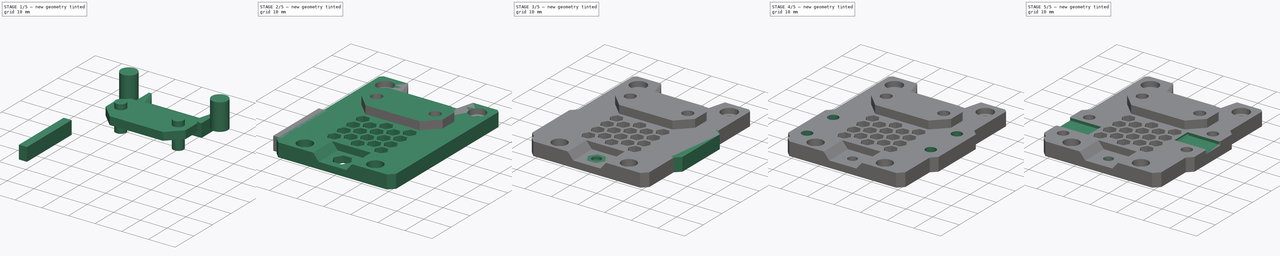
[diagram: build sequence overview — one tinted view per stage of 5, left to right]
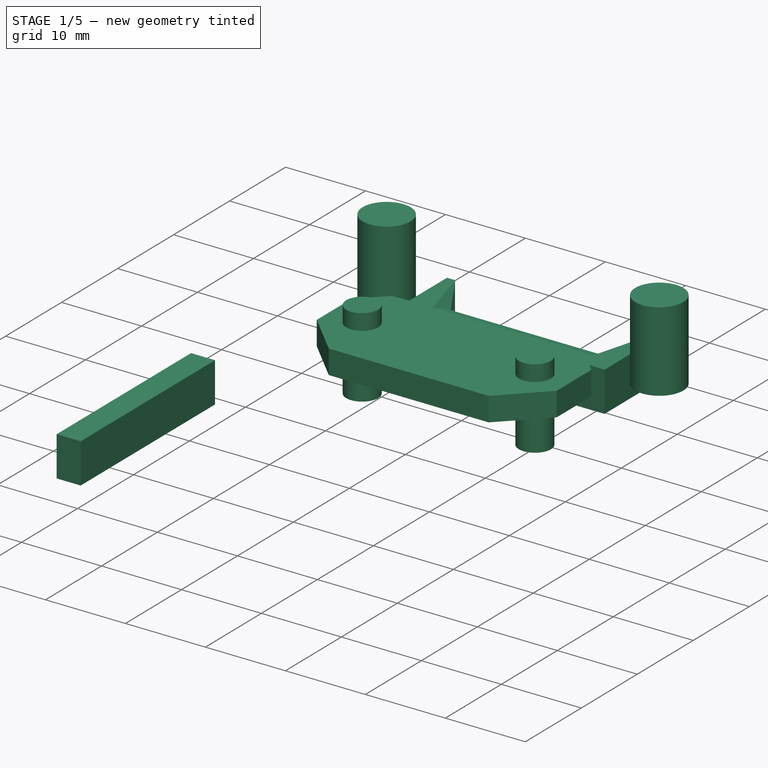
[diagram: stage 1 of 5 — iso view after this stage's code; geometry added in this stage tinted green]
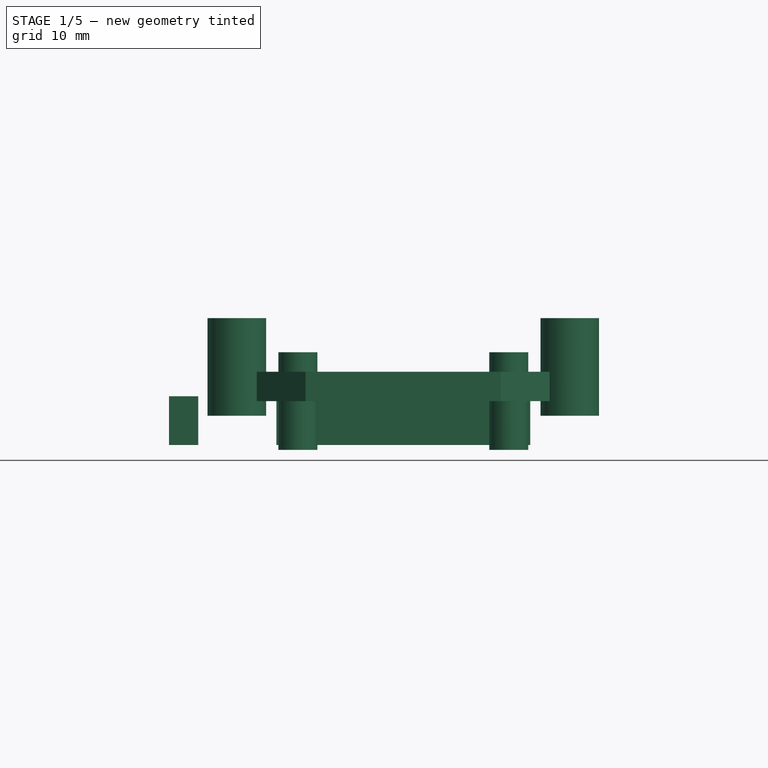
[diagram: stage 1 of 5 — front view after this stage's code; geometry added in this stage tinted green]
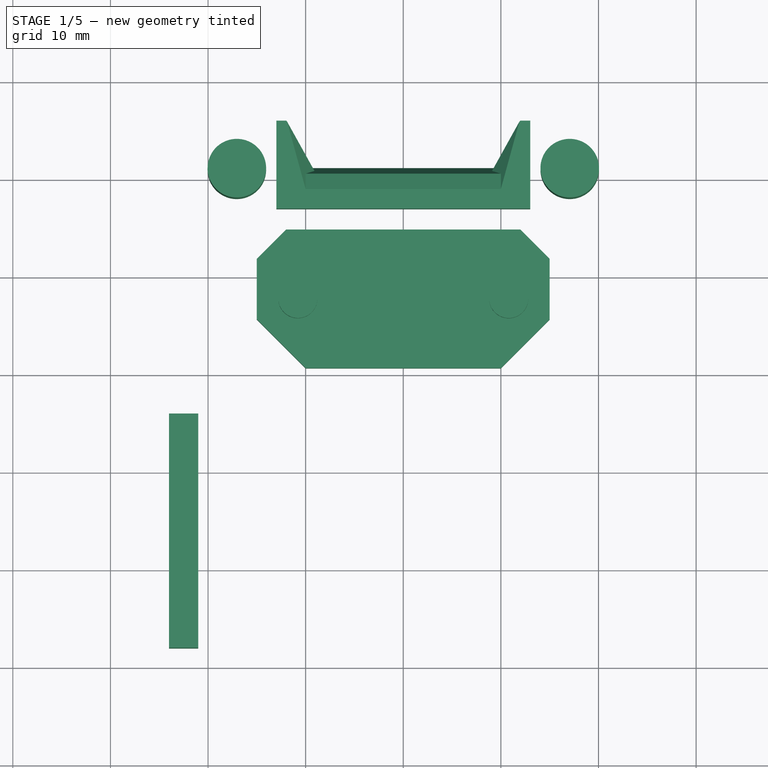
[diagram: stage 1 of 5 — top view after this stage's code; geometry added in this stage tinted green]
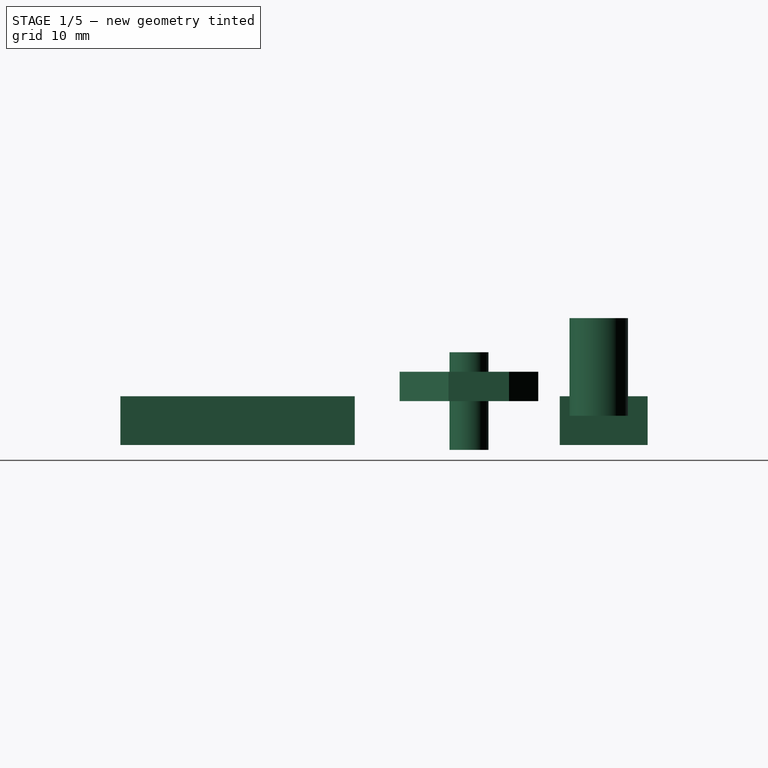
[diagram: stage 1 of 5 — right view after this stage's code; geometry added in this stage tinted green]
FCSTD DOCUMENT  (FreeCAD 0.19R24291 (Git))
Label: front-plate
License: Other
LicenseURL: GPL3
objects: Part::Cylinder×10, Part::MultiFuse×10, Part::Cut×9, Part::Box×7, Part::Feature×7, Part::Chamfer×4, Part::Extrusion×1, Part::MultiCommon×1, PartDesign::FeatureBase×1, Sketcher::SketchObject×1, PartDesign::Pad×1, PartDesign::Chamfer×1, PartDesign::Body×1
note: 56 computed .brp shape members not serialized (recipe doc carries the construction recipe); baked Part::Feature solids carry a one-line shape summary decoded from their .brp

FEATURE [Part::Cylinder] Cylinder023
  Angle = 360
  AttacherType = Attacher::AttachEngine3D
  Height = 10
  Placement = pos=(10.8,17.705,0) rot=(0,0,1;0rad)
  Radius = 2
FEATURE [Part::Box] Box030  label="Cube026"
  AttacherType = Attacher::AttachEngine3D
  Height = 10
  Length = 26
  Placement = pos=(-13,27,0) rot=(0,0,1;0rad)
  Width = 10
FEATURE [Part::Cylinder] Cylinder028
  Angle = 360
  AttacherType = Attacher::AttachEngine3D
  Height = 10
  Placement = pos=(-10.8,17.71,0) rot=(0,0,1;1.5708rad)
  Radius = 2
FEATURE [Part::Feature] Part__Feature077  label="universal_face003"
  Placement = pos=(-0.00422634,7.50353,0.50127) rot=(-1,0,0;1.5708rad)
  shape: bbox 44.11 x 57.01 x 8.01 mm, 258 faces (baked)
FEATURE [Part::Feature] Part__Feature074_cs002
  shape: bbox 30 x 14.2 x 3e-07 mm, 0 faces, 0 solids (baked)
FEATURE [Part::Extrusion] Extrude003002002
  Base = -> Part__Feature074_cs002
  Dir = (0,0,1)
  DirMode = 2
  FaceMakerClass = Part::FaceMakerBullseye
  LengthFwd = 3
  LengthRev = 0
  Placement = pos=(0,0,-1) rot=(0,0,1;0rad)
  Solid = true
  Symmetric = false
FEATURE [Part::Cylinder] Cylinder029
  Angle = 360
  AttacherType = Attacher::AttachEngine3D
  Height = 10
  Placement = pos=(17.05,31,3.5) rot=(0,0,1;1.5708rad)
  Radius = 3
FEATURE [Part::Box] Box035  label="Cube031"
  AttacherType = Attacher::AttachEngine3D
  Height = 5
  Length = 3
  Placement = pos=(-24,-18,0.5) rot=(0,0,1;0rad)
  Width = 24
FEATURE [Part::MultiCommon] Common001
  Placement = pos=(0,0,-0.00126953) rot=(0,0,1;0rad)
  Shapes = -> [Part__Feature077,Box030]
FEATURE [Part::Cylinder] Cylinder032
  Angle = 360
  AttacherType = Attacher::AttachEngine3D
  Height = 10
  Placement = pos=(-17.05,31,3.5) rot=(0,0,1;1.5708rad)
  Radius = 3
FEATURE [Part::MultiFuse] Fusion001007011044
  Shapes = -> [Cylinder032,Cylinder029]
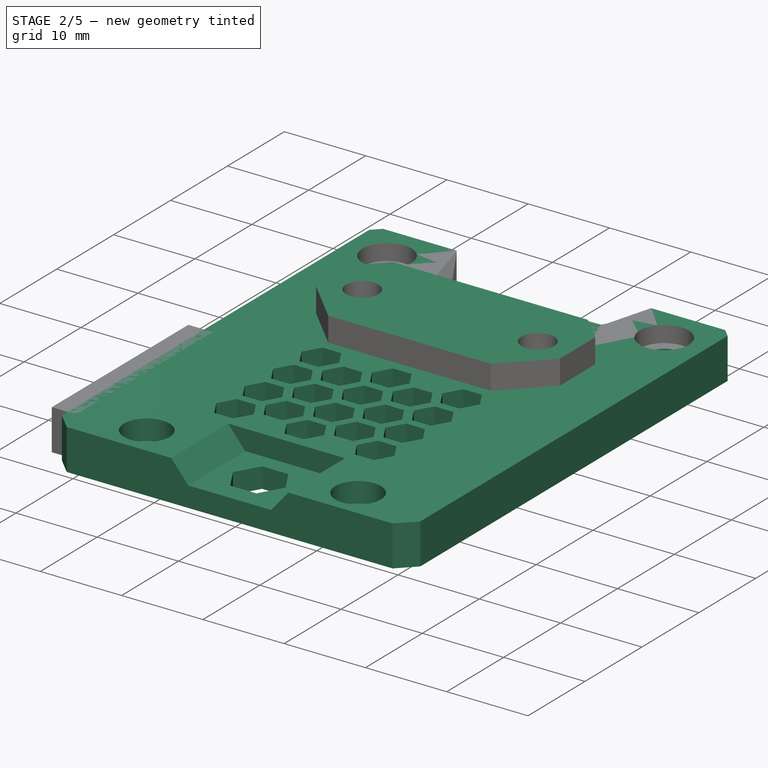
[diagram: stage 2 of 5 — iso view after this stage's code; geometry added in this stage tinted green]
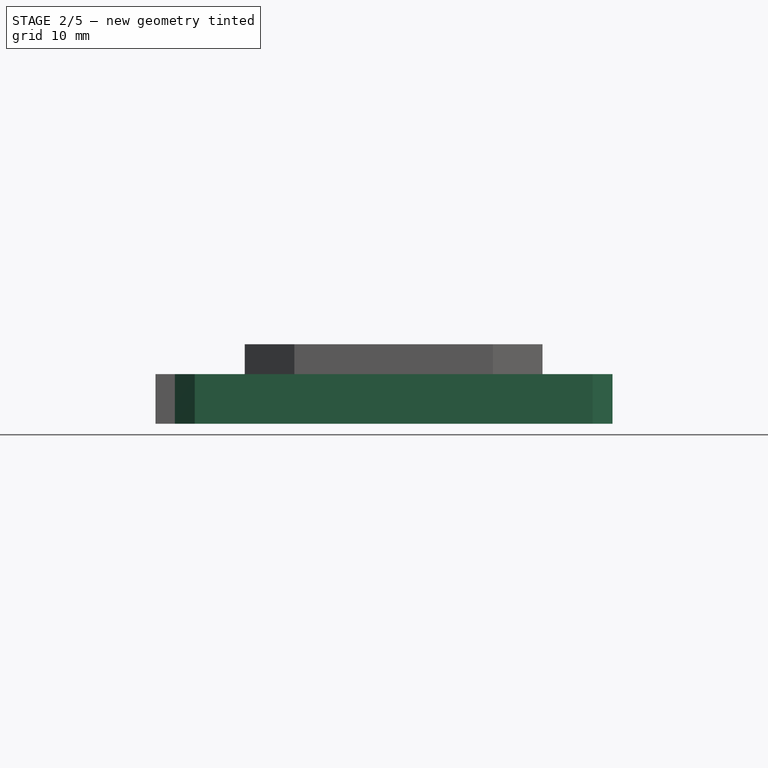
[diagram: stage 2 of 5 — front view after this stage's code; geometry added in this stage tinted green]
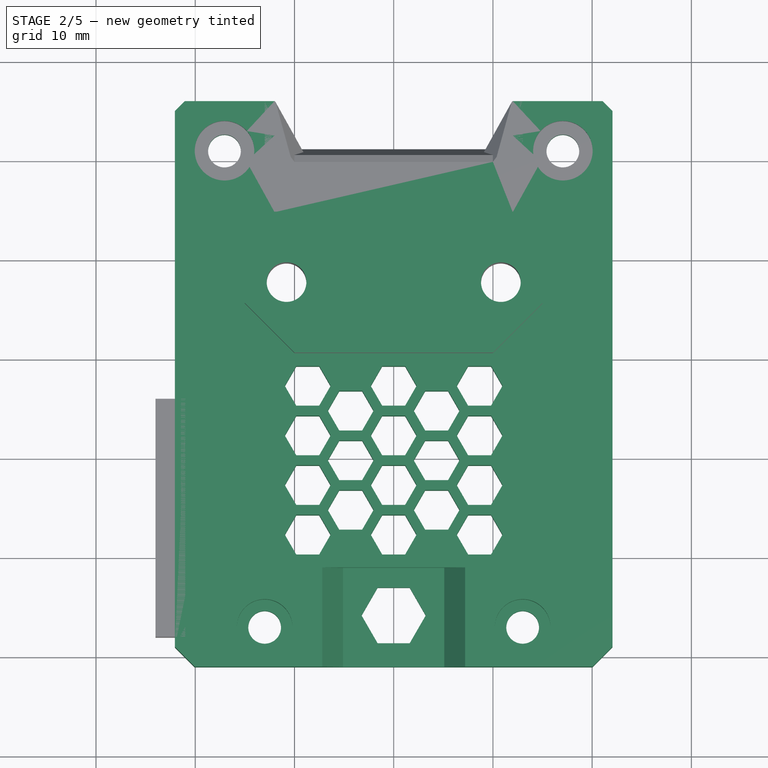
[diagram: stage 2 of 5 — top view after this stage's code; geometry added in this stage tinted green]
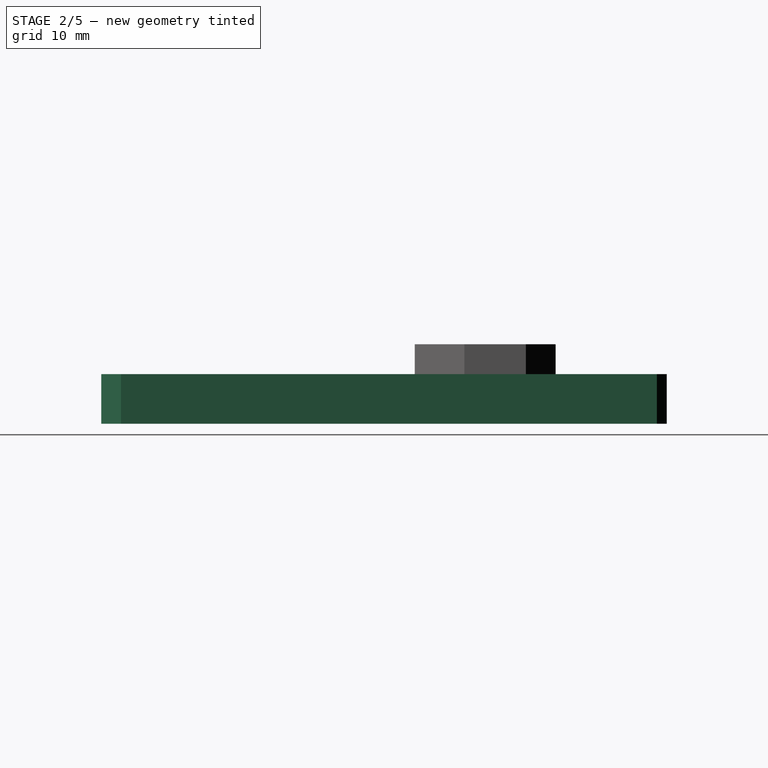
[diagram: stage 2 of 5 — right view after this stage's code; geometry added in this stage tinted green]
FEATURE [Part::Box] Box032  label="Cube028"
  AttacherType = Attacher::AttachEngine3D
  Height = 10
  Length = 15
  Placement = pos=(-7.5,-21,2.5) rot=(0,0,1;0rad)
  Width = 11
FEATURE [Part::MultiFuse] Fusion001007011039
  Shapes = -> [Cylinder023,Cylinder028]
FEATURE [Part::Feature] Body009  label="base-plate001"
  shape: bbox 44.1 x 57 x 5 mm, 134 faces (baked)
FEATURE [Part::MultiFuse] Fusion001007011035
  Shapes = -> [Extrude003002002,Body009]
FEATURE [Part::Feature] Part__Feature078  label="universal_face004"
  Placement = pos=(-0.00422634,7.50353,0.50127) rot=(-1,0,0;1.5708rad)
  shape: bbox 44.11 x 57.01 x 8.01 mm, 258 faces (baked)
FEATURE [Part::Cut] Cut008004003012001003001010001015
  Base = -> Box032
  Tool = -> Part__Feature078
FEATURE [Part::Cut] Cut008004003012001003001010001019
  Base = -> Fusion001007011035
  Placement = pos=(0,0,0.5) rot=(0,0,1;0rad)
  Tool = -> Fusion001007011039
FEATURE [Part::Cut] Cut008004003012001003001010001016
  Base = -> Cut008004003012001003001010001019
  Tool = -> Fusion001007011044
FEATURE [Part::Feature] Body010
  shape: bbox 5.6 x 5.6 x 10 mm, 3 faces (baked)
FEATURE [Part::MultiFuse] Fusion001007011036
  Placement = pos=(0,0,3) rot=(0,0,1;0rad)
  Shapes = -> [Body008,Body010]
FEATURE [Part::Cut] Cut008004003012001003001010001017
  Base = -> Cut008004003012001003001010001016
  Tool = -> Fusion001007011036
FEATURE [Part::Cut] Cut008004003012001003001010001018
  Base = -> Cut008004003012001003001010001017
  Tool = -> Cut008004003012001003001010001015
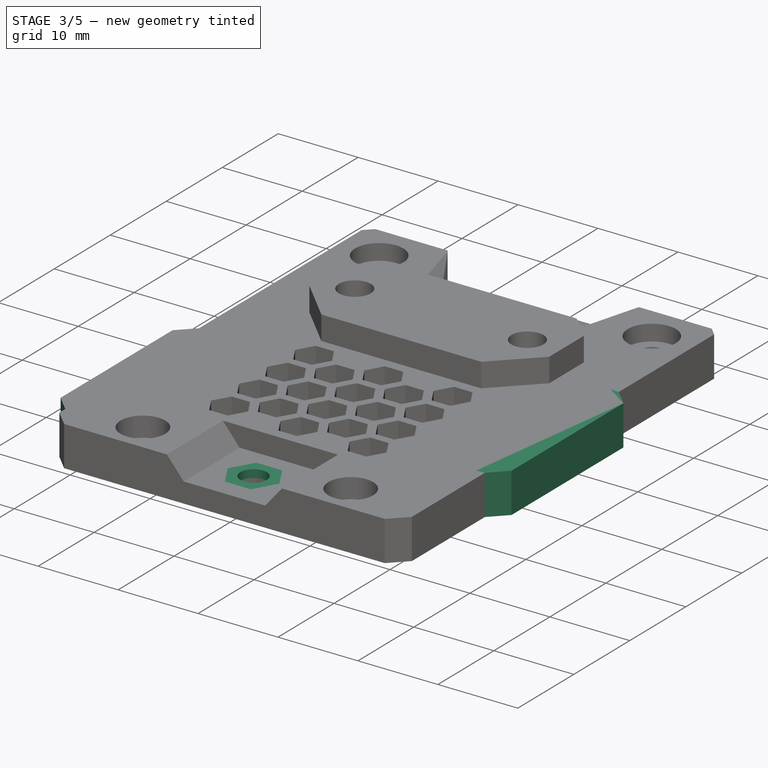
[diagram: stage 3 of 5 — iso view after this stage's code; geometry added in this stage tinted green]
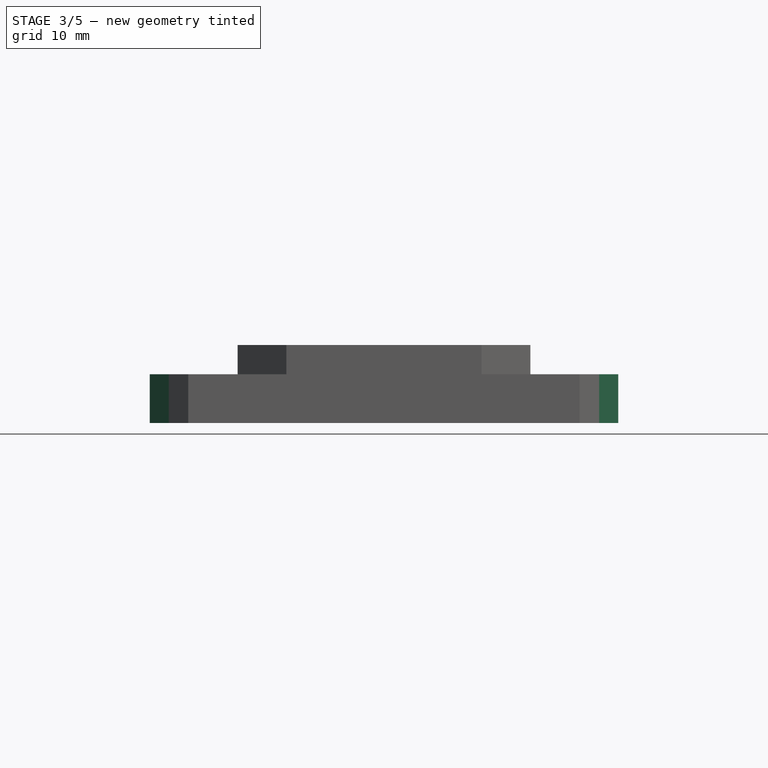
[diagram: stage 3 of 5 — front view after this stage's code; geometry added in this stage tinted green]
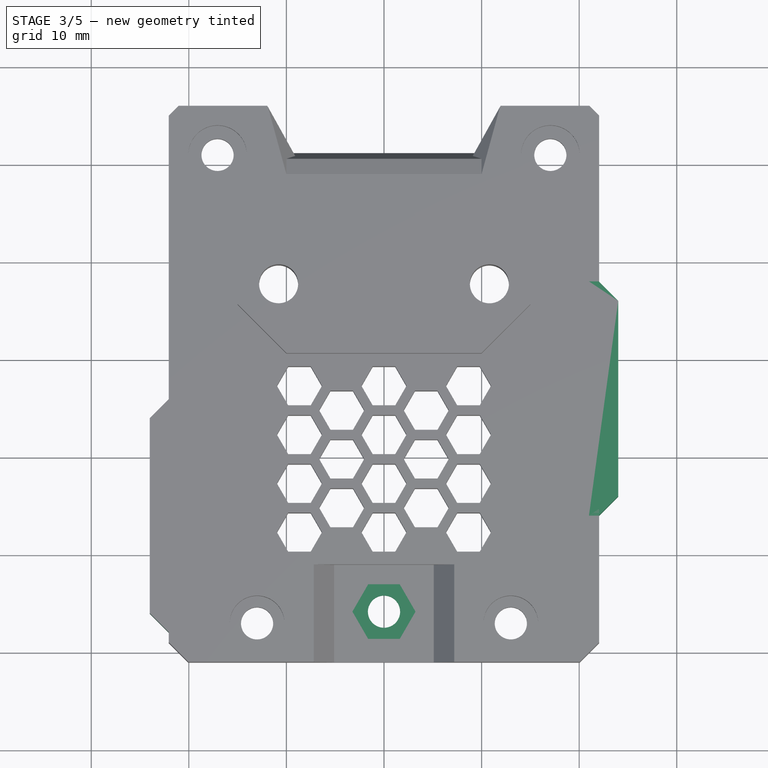
[diagram: stage 3 of 5 — top view after this stage's code; geometry added in this stage tinted green]
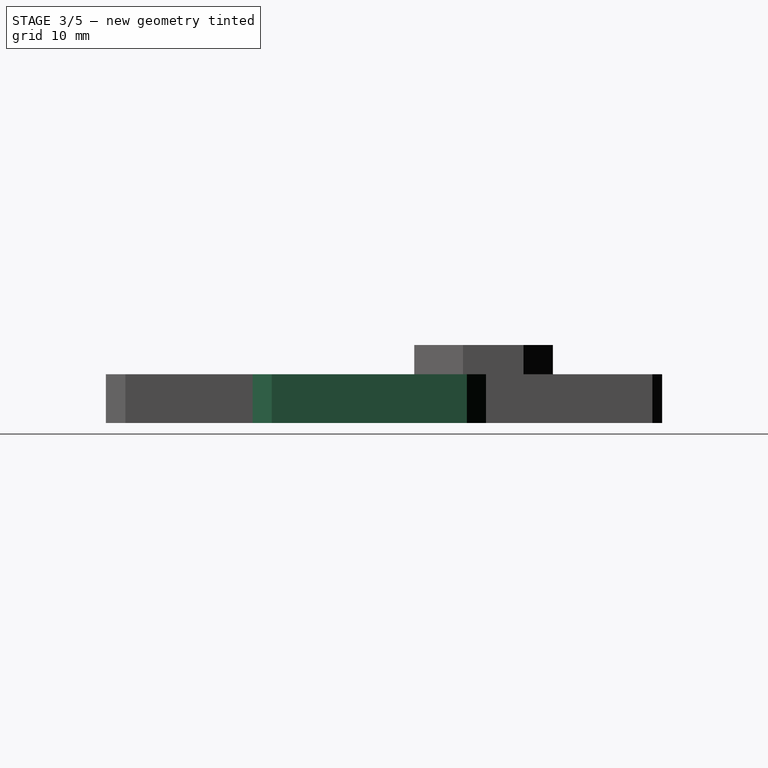
[diagram: stage 3 of 5 — right view after this stage's code; geometry added in this stage tinted green]
FEATURE [Part::Box] Box029  label="Cube025"
  AttacherType = Attacher::AttachEngine3D
  Height = 5
  Length = 3
  Placement = pos=(21,-6,0.5) rot=(0,0,1;0rad)
  Width = 24
FEATURE [Part::Chamfer] Chamfer008004
  Base = -> Box029
  Edges = 2 edges r=2: [Edge5,Edge7]
FEATURE [Part::Feature] Body008
  Placement = pos=(26,0,0) rot=(0,0,1;0rad)
  shape: bbox 5.6 x 5.6 x 10 mm, 3 faces (baked)
FEATURE [Part::Cylinder] Cylinder025
  Angle = 360
  AttacherType = Attacher::AttachEngine3D
  Height = 1
  Placement = pos=(0,-15.8,2) rot=(0,0,1;0rad)
  Radius = 4
FEATURE [Part::Cylinder] Cylinder026
  Angle = 360
  AttacherType = Attacher::AttachEngine3D
  Height = 1
  Placement = pos=(0,-15.8,2) rot=(0,0,1;0rad)
  Radius = 1.65
FEATURE [Part::Cut] Cut008004003012001003001010001014
  Base = -> Cylinder025
  Tool = -> Cylinder026
FEATURE [Part::Box] Box034  label="Cube030"
  AttacherType = Attacher::AttachEngine3D
  Height = 10
  Length = 26
  Placement = pos=(-13,27,0) rot=(0,0,1;0rad)
  Width = 10
FEATURE [Part::Chamfer] Chamfer008007
  Base = -> Box035
  Edges = 2 edges r=2: [Edge1,Edge3]
FEATURE [Part::MultiFuse] Fusion001007011037
  Shapes = -> [Cut008004003012001003001010001014,Cut008004003012001003001010001018]
FEATURE [Part::Cut] Cut008004003012001003001010001020
  Base = -> Fusion001007011037
  Tool = -> Box034
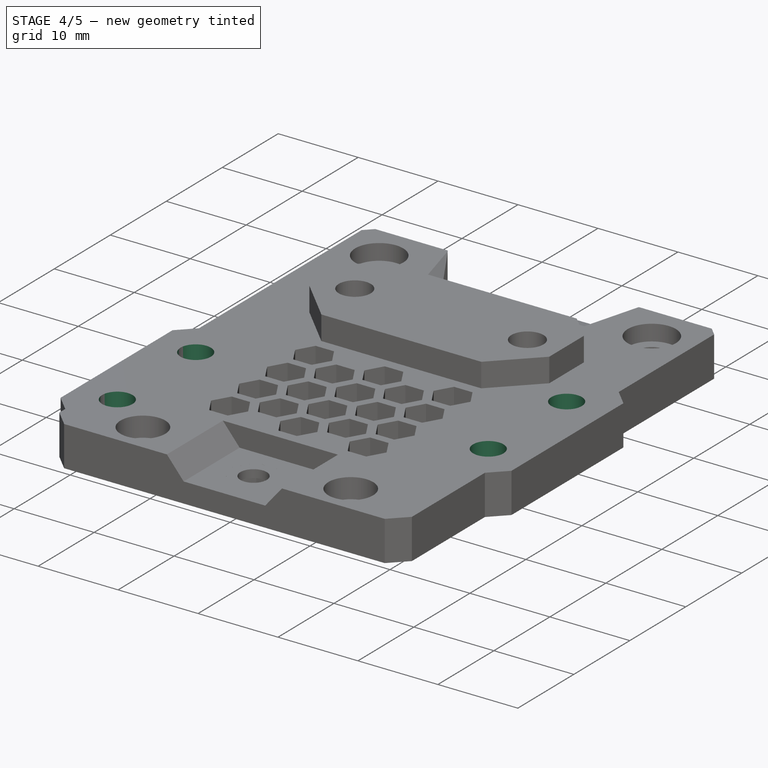
[diagram: stage 4 of 5 — iso view after this stage's code; geometry added in this stage tinted green]
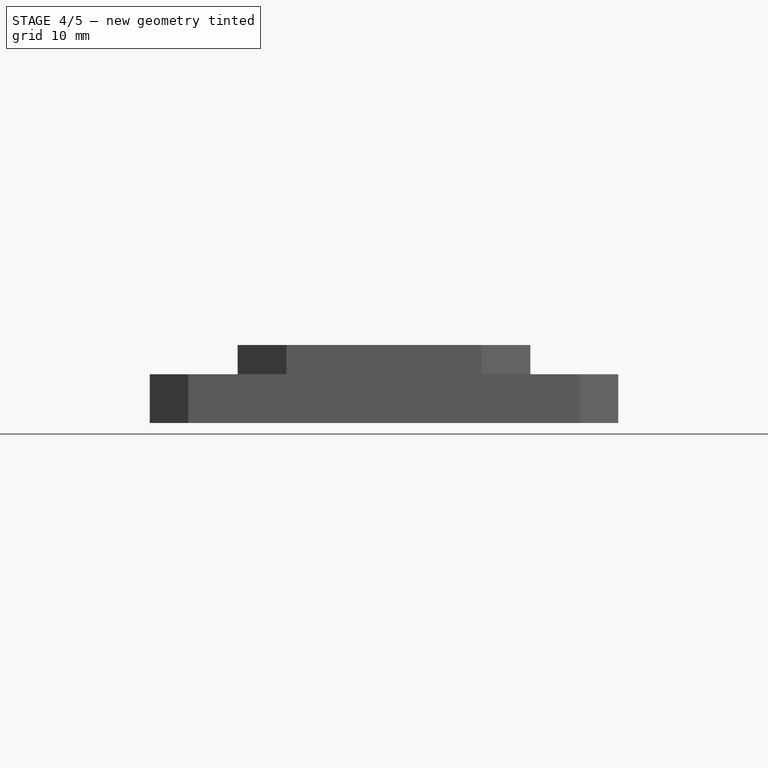
[diagram: stage 4 of 5 — front view after this stage's code; geometry added in this stage tinted green]
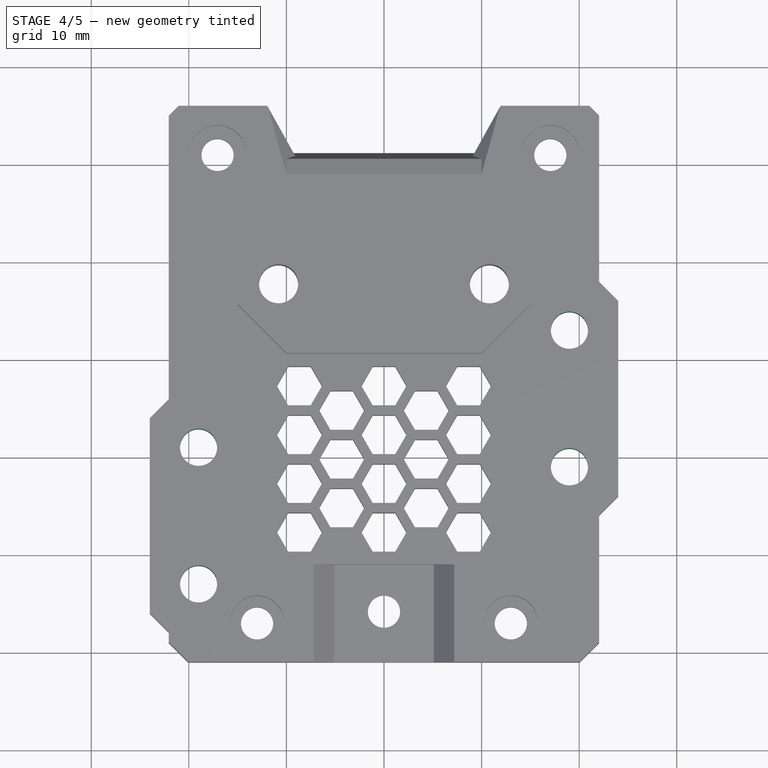
[diagram: stage 4 of 5 — top view after this stage's code; geometry added in this stage tinted green]
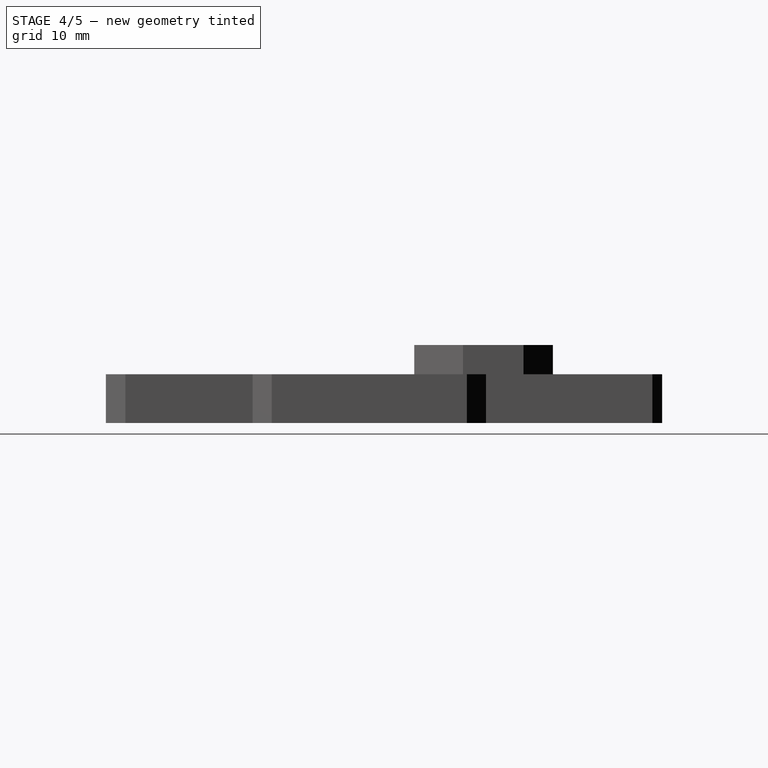
[diagram: stage 4 of 5 — right view after this stage's code; geometry added in this stage tinted green]
FEATURE [Part::Cylinder] Cylinder024
  Angle = 360
  AttacherType = Attacher::AttachEngine3D
  Height = 10
  Placement = pos=(-19,1,0) rot=(0,0,1;0rad)
  Radius = 1.9
FEATURE [Part::Cylinder] Cylinder027
  Angle = 360
  AttacherType = Attacher::AttachEngine3D
  Height = 10
  Placement = pos=(19,-1,0) rot=(0,0,1;0rad)
  Radius = 1.9
FEATURE [Part::Cylinder] Cylinder030
  Angle = 360
  AttacherType = Attacher::AttachEngine3D
  Height = 10
  Placement = pos=(19,13,0) rot=(0,0,1;0rad)
  Radius = 1.9
FEATURE [Part::Cylinder] Cylinder031
  Angle = 360
  AttacherType = Attacher::AttachEngine3D
  Height = 10
  Placement = pos=(-19,-13,0) rot=(0,0,1;0rad)
  Radius = 1.9
FEATURE [Part::MultiFuse] Fusion001007011043
  Shapes = -> [Cylinder024,Cylinder030,Cylinder031,Cylinder027]
FEATURE [Part::MultiFuse] Fusion001007011042
  Shapes = -> [Chamfer008007,Chamfer008004]
FEATURE [Part::MultiFuse] Fusion001007011040
  Shapes = -> [Common001,Cut008004003012001003001010001020]
FEATURE [Part::MultiFuse] Fusion001007011045
  Shapes = -> [Fusion001007011040,Fusion001007011042]
FEATURE [Part::Cut] Cut008004003012001003001010001021
  Base = -> Fusion001007011045
  Tool = -> Fusion001007011043
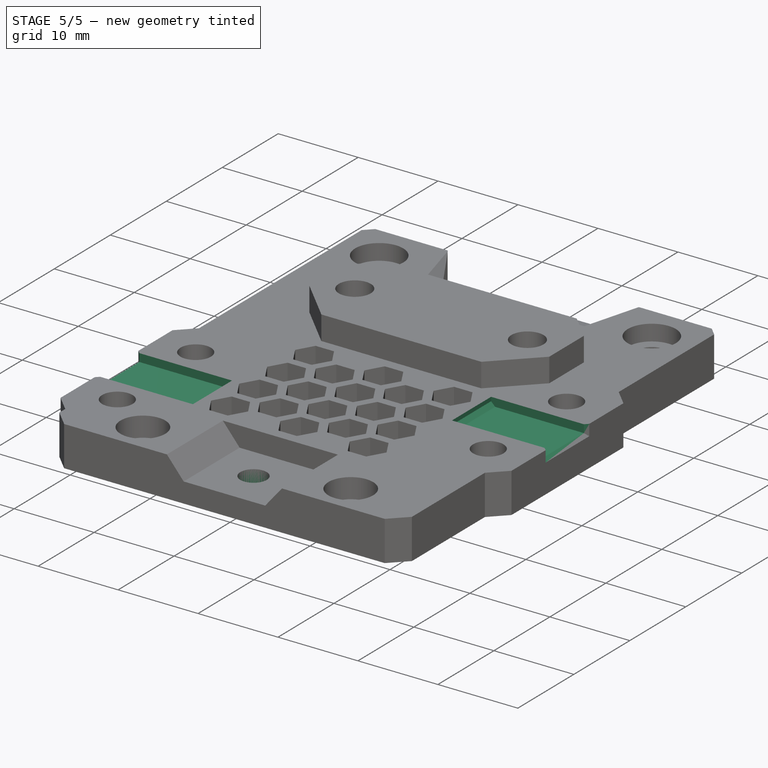
[diagram: stage 5 of 5 — iso view after this stage's code; geometry added in this stage tinted green]
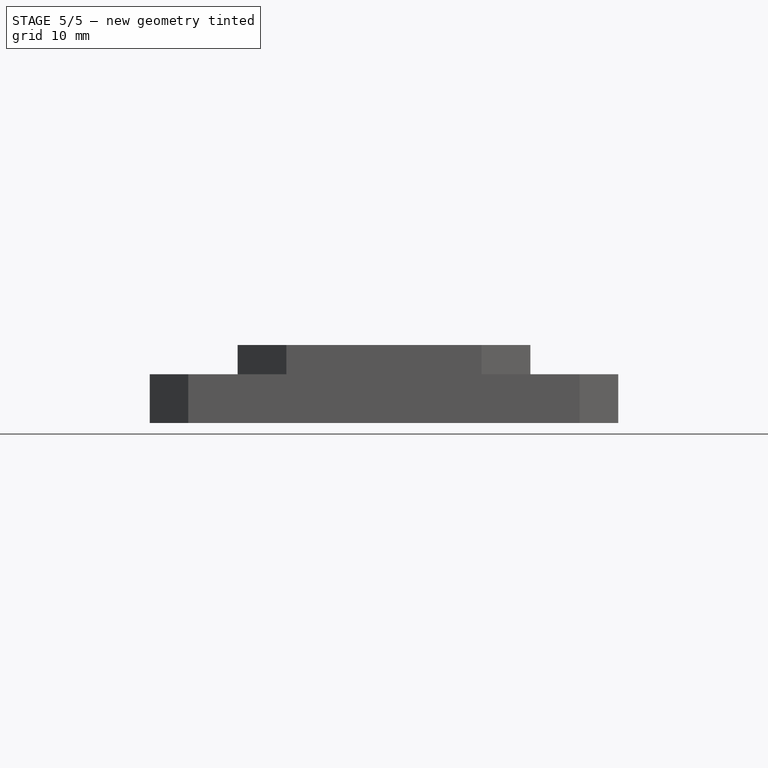
[diagram: stage 5 of 5 — front view after this stage's code; geometry added in this stage tinted green]
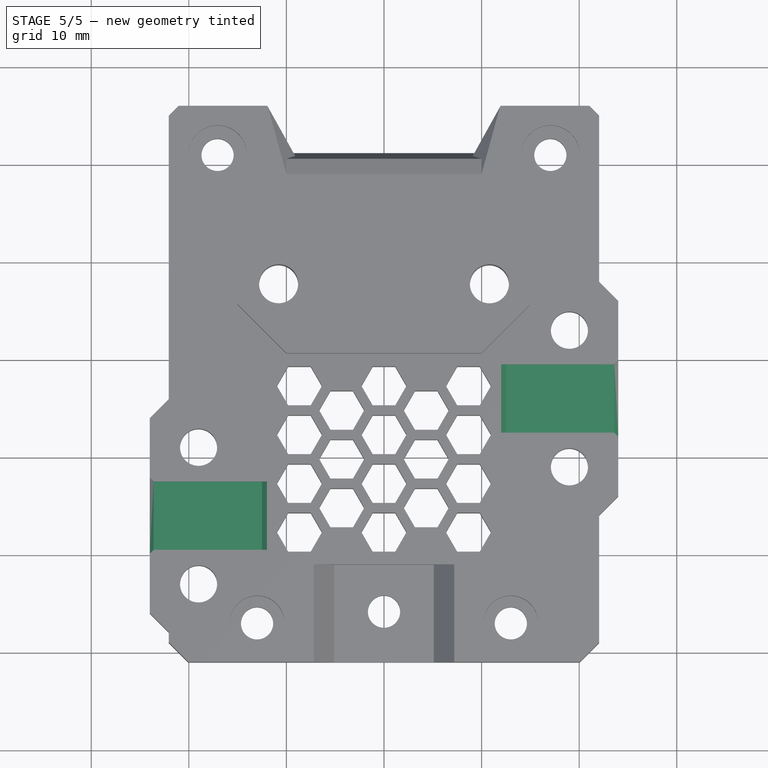
[diagram: stage 5 of 5 — top view after this stage's code; geometry added in this stage tinted green]
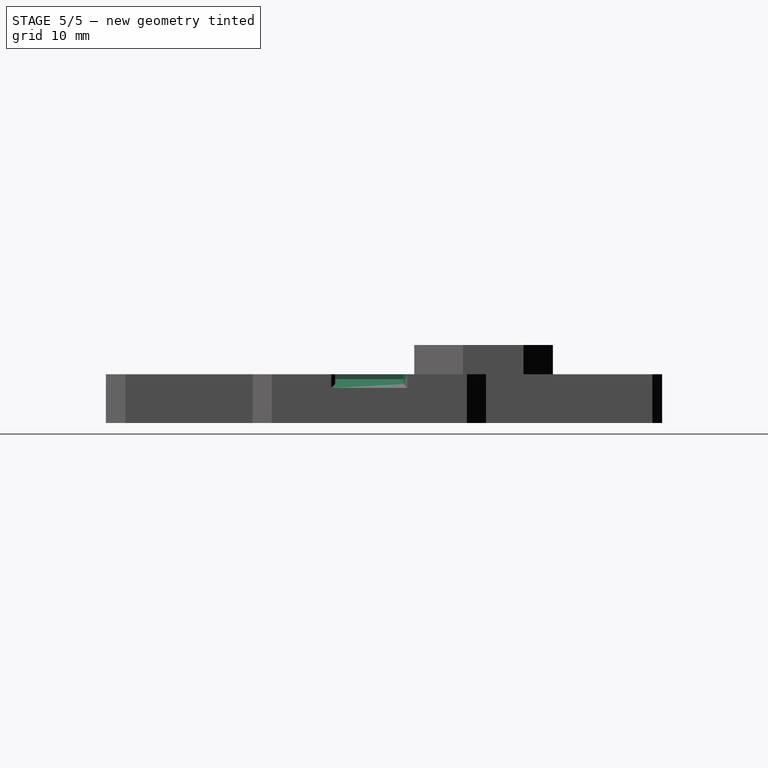
[diagram: stage 5 of 5 — right view after this stage's code; geometry added in this stage tinted green]
FEATURE [Part::Box] Box031  label="Cube027"
  AttacherType = Attacher::AttachEngine3D
  Height = 2.5
  Length = 12
  Placement = pos=(12,5,4.5) rot=(0,0,1;0rad)
  Width = 7
FEATURE [Part::Box] Box033  label="Cube029"
  AttacherType = Attacher::AttachEngine3D
  Height = 2.5
  Length = 12
  Placement = pos=(-24,-7,4.5) rot=(0,0,1;0rad)
  Width = 7
FEATURE [Part::MultiFuse] Fusion001007011041
  Shapes = -> [Box033,Box031]
FEATURE [Part::Chamfer] Chamfer008006
  Base = -> Fusion001007011041
  Edges = 2 edges r=0.5: [Edge8,Edge16]
  Placement = pos=(0,-2.5,0) rot=(0,0,1;0rad)
FEATURE [Part::Cut] Cut008004003012001003001010001022
  Base = -> Cut008004003012001003001010001021
  Tool = -> Chamfer008006
FEATURE [Part::Chamfer] Chamfer008008  label="front-plate-2p4-common"
  Base = -> Cut008004003012001003001010001022
  Edges = 6 edges r=0.4: [Edge206,Edge213,Edge241,Edge248,Edge540,Edge556]
FEATURE [PartDesign::FeatureBase] BaseFeature
  BaseFeature = -> Chamfer008008
FEATURE [Sketcher::SketchObject] Sketch
  ExternalGeometry = -> [BaseFeature]
  FullyConstrained = true
  MapMode = 5
  Placement = pos=(1.3e-15,0,3.00127) rot=(0,0,1;0rad)
  Support = -> [BaseFeature]
  sketch-geometry (2):
    g0: Circle CenterX=0 CenterY=-15.8 CenterZ=0 NormalX=0 NormalY=0 NormalZ=1 AngleXU=0 Radius=4.5
    g1: Circle CenterX=0 CenterY=-15.8 CenterZ=0 NormalX=0 NormalY=0 NormalZ=1 AngleXU=0 Radius=1.65
  constraints (4):
    c: Coincident(g0,g-3)
    c: Coincident(g1,g0)
    c: Radius(g1) = 1.65
    c: Radius(g0) = 4.5
FEATURE [PartDesign::Pad] Pad
  BaseFeature = -> BaseFeature
  Direction = (1,1,1)
  Length = 10
  Length2 = 100
  Profile = -> Sketch
  Refine = true
  Type = 3
  UpToFace = -> BaseFeature [Face163]
FEATURE [PartDesign::Chamfer] Chamfer
  Angle = 45
  Base = -> Pad [Edge167,Edge166,Edge170,Edge171,Edge169,Edge168]
  BaseFeature = -> Pad
  ChamferType = 0
  FlipDirection = false
  Size = 0.4
  Size2 = 1
  SupportTransform = false
FEATURE [PartDesign::Body] Body
  BaseFeature = -> Chamfer008008
  Group = -> [BaseFeature,Sketch,Pad,Chamfer]
  Origin = -> Origin
  Tip = -> Chamfer
FEATURE [Part::Feature] Chamfer008009
  shape: bbox 48 x 57 x 8 mm, 192 faces (baked)
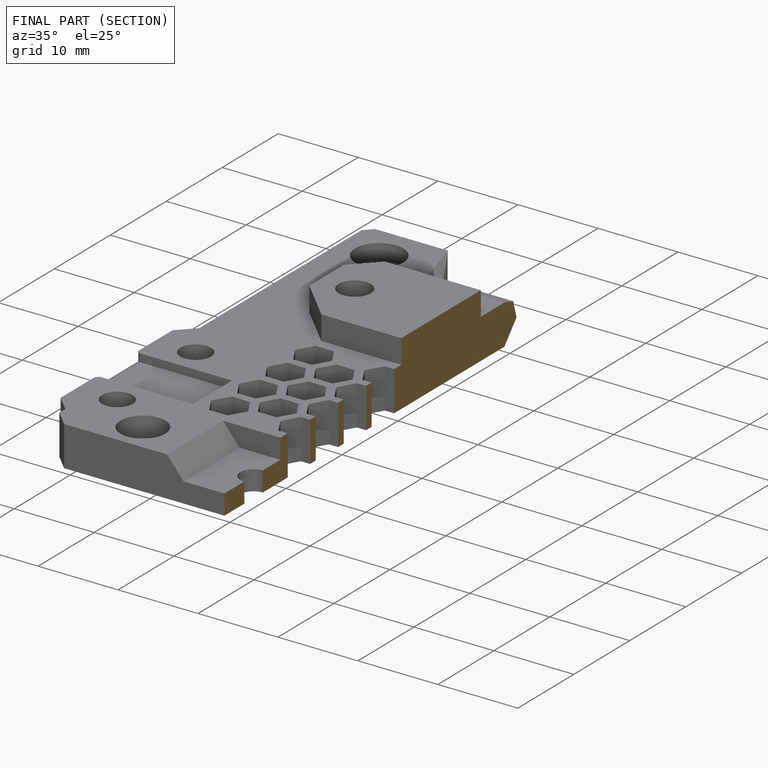
[diagram: finished part — half-section view (interior)]
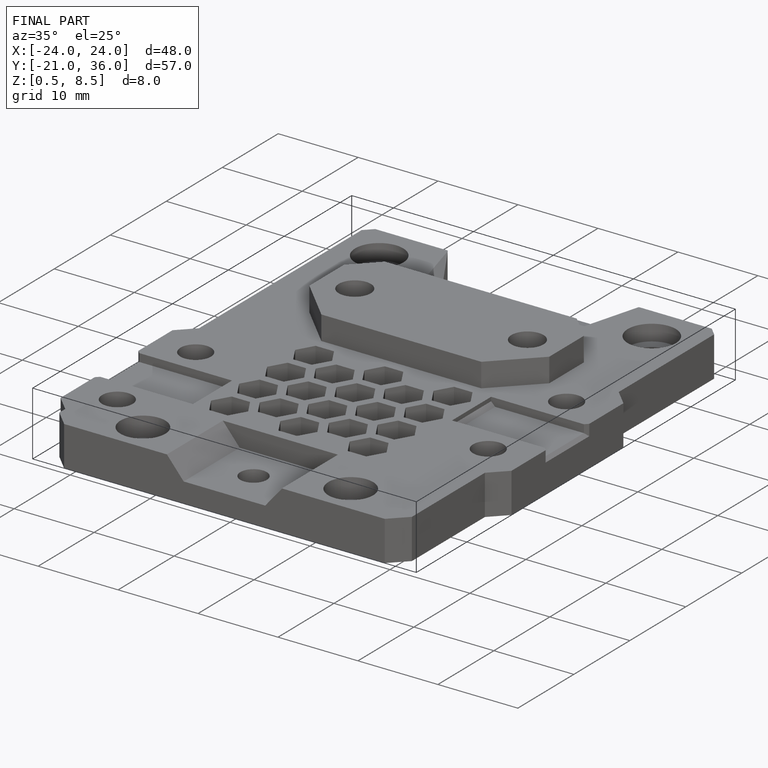
[diagram: finished part — iso view with bounding-box wireframe]
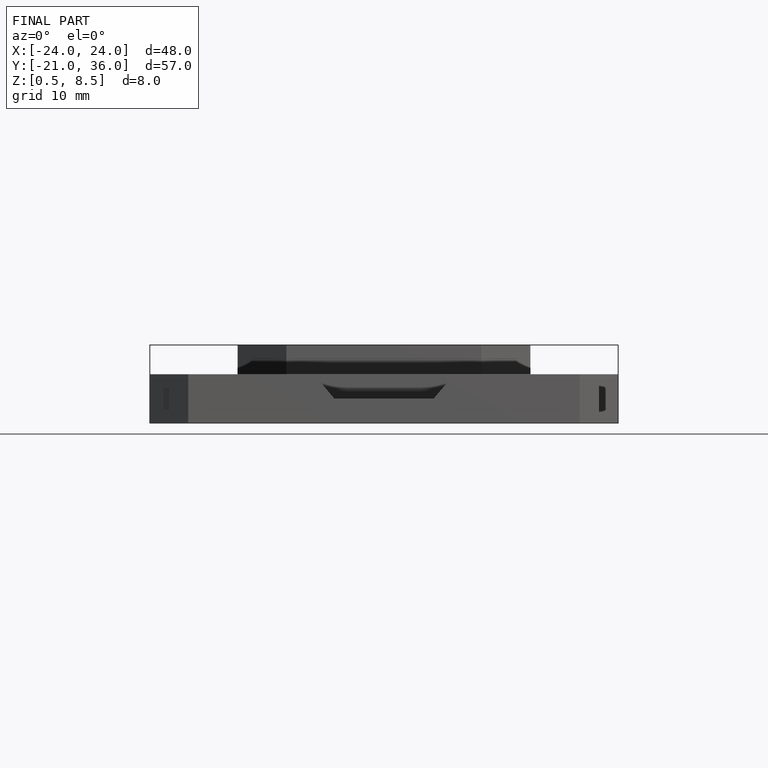
[diagram: finished part — front view with bounding-box wireframe]
